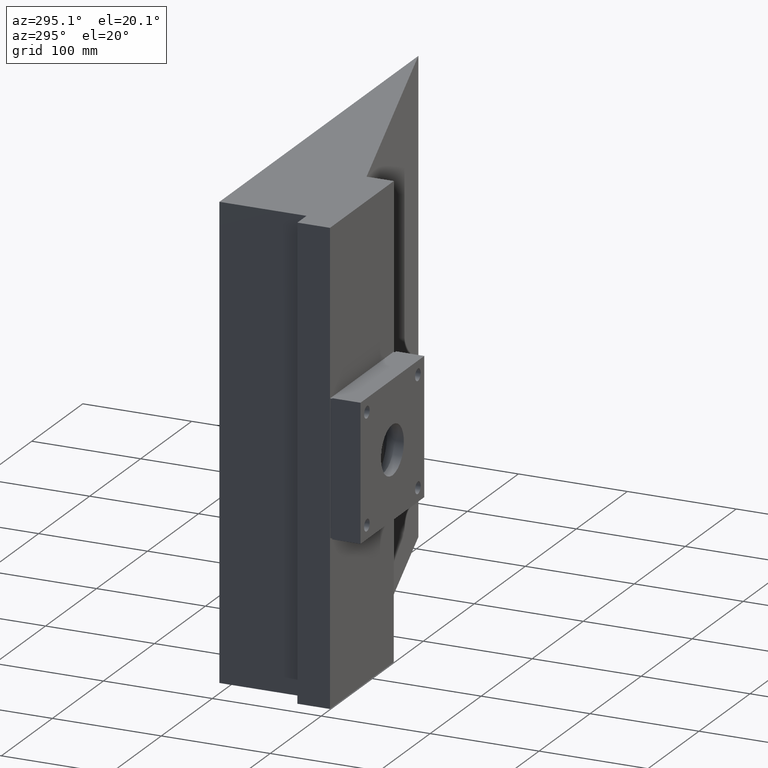
[diagram: clean part render]
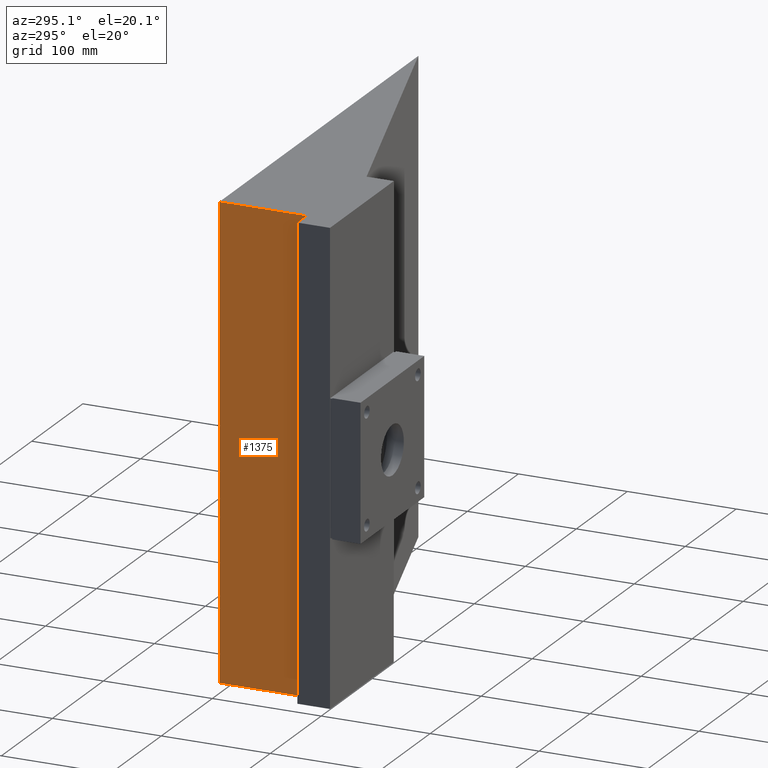
[diagram: same view with one face highlighted and labeled with its STEP entity id]
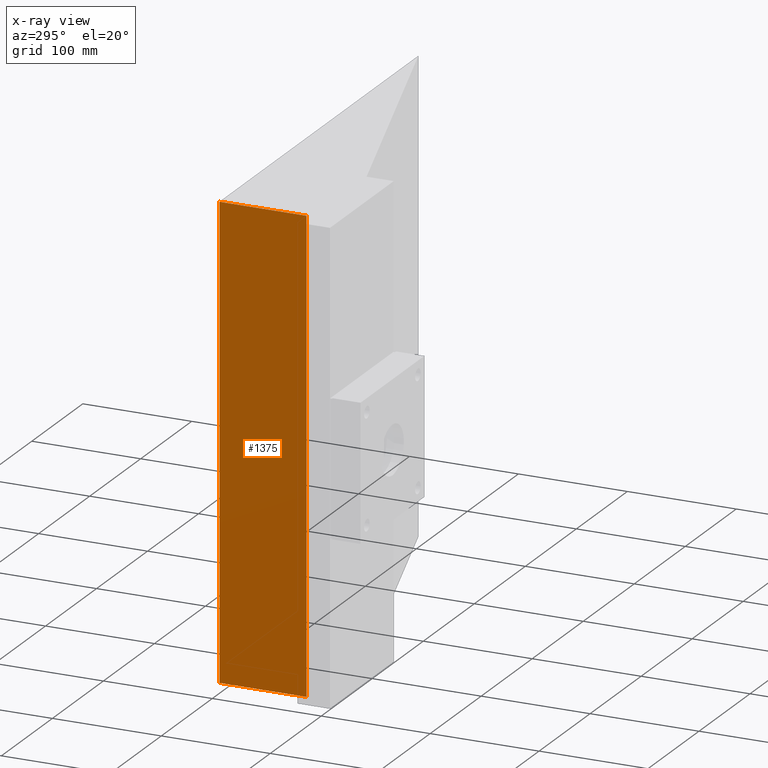
[diagram: x-ray of the same camera — body ghosted, the highlighted face saturated]
A machine part, auxiliary view. The second image highlights one B-rep face of the part: STEP entity #1375.
The next image is the same camera in x-ray: the body ghosted, the highlighted face saturated — about 0% of this face is hidden behind the body in this view.
In plain terms, the highlighted planar face has unit normal (1, 0, 0).
Its self-contained STEP definition (entity closure, byte-faithful):
#23 = ORIENTED_EDGE ( 'NONE', *, *, #379, .T. ) ;
#210 = CARTESIAN_POINT ( 'NONE',  ( -86.11638246079655800, -80.00000000000000000, -213.0000000000000000 ) ) ;
#224 = LINE ( 'NONE', #2254, #2564 ) ;
#252 = VERTEX_POINT ( 'NONE', #2190 ) ;
#255 = DIRECTION ( 'NONE',  ( 1.000000000000000000, 0.0000000000000000000, 0.0000000000000000000 ) ) ;
#379 = EDGE_CURVE ( 'NONE', #2578, #2099, #224, .T. ) ;
#630 = EDGE_LOOP ( 'NONE', ( #23, #1500, #1347, #1647 ) ) ;
#1062 = CARTESIAN_POINT ( 'NONE',  ( -86.11638246079655800, -80.00000000000000000, 213.0000000000000000 ) ) ;
#1347 = ORIENTED_EDGE ( 'NONE', *, *, #1846, .F. ) ;
#1375 = ADVANCED_FACE ( 'NONE', ( #1812 ), #1853, .F. ) ;
#1391 = VECTOR ( 'NONE', #2368, 1000.000000000000000 ) ;
#1400 = CARTESIAN_POINT ( 'NONE',  ( -86.11638246079655800, 0.0000000000000000000, 213.0000000000000000 ) ) ;
#1410 = DIRECTION ( 'NONE',  ( 0.0000000000000000000, 0.0000000000000000000, -1.000000000000000000 ) ) ;
#1432 = AXIS2_PLACEMENT_3D ( 'NONE', #2529, #255, #1410 ) ;
#1500 = ORIENTED_EDGE ( 'NONE', *, *, #2923, .F. ) ;
#1647 = ORIENTED_EDGE ( 'NONE', *, *, #1952, .T. ) ;
#1741 = CARTESIAN_POINT ( 'NONE',  ( -86.11638246079655800, -80.00000000000000000, 213.0000000000000000 ) ) ;
#1812 = FACE_OUTER_BOUND ( 'NONE', #630, .T. ) ;
#1846 = EDGE_CURVE ( 'NONE', #2413, #252, #2264, .T. ) ;
#1853 = PLANE ( 'NONE',  #1432 ) ;
#1866 = CARTESIAN_POINT ( 'NONE',  ( -86.11638246079655800, 0.0000000000000000000, 213.0000000000000000 ) ) ;
#1952 = EDGE_CURVE ( 'NONE', #2413, #2578, #2051, .T. ) ;
#1969 = DIRECTION ( 'NONE',  ( -0.0000000000000000000, -1.000000000000000000, -0.0000000000000000000 ) ) ;
#2051 = LINE ( 'NONE', #1400, #1391 ) ;
#2099 = VERTEX_POINT ( 'NONE', #210 ) ;
#2190 = CARTESIAN_POINT ( 'NONE',  ( -86.11638246079655800, -80.00000000000000000, 213.0000000000000000 ) ) ;
#2254 = CARTESIAN_POINT ( 'NONE',  ( -86.11638246079655800, -80.00000000000000000, -213.0000000000000000 ) ) ;
#2264 = LINE ( 'NONE', #1741, #2857 ) ;
#2319 = LINE ( 'NONE', #1062, #2912 ) ;
#2368 = DIRECTION ( 'NONE',  ( -0.0000000000000000000, -0.0000000000000000000, -1.000000000000000000 ) ) ;
#2413 = VERTEX_POINT ( 'NONE', #1866 ) ;
#2513 = CARTESIAN_POINT ( 'NONE',  ( -86.11638246079655800, 0.0000000000000000000, -213.0000000000000000 ) ) ;
#2529 = CARTESIAN_POINT ( 'NONE',  ( -86.11638246079655800, -80.00000000000000000, 213.0000000000000000 ) ) ;
#2564 = VECTOR ( 'NONE', #2850, 1000.000000000000000 ) ;
#2578 = VERTEX_POINT ( 'NONE', #2513 ) ;
#2635 = DIRECTION ( 'NONE',  ( -0.0000000000000000000, -0.0000000000000000000, -1.000000000000000000 ) ) ;
#2850 = DIRECTION ( 'NONE',  ( -0.0000000000000000000, -1.000000000000000000, -0.0000000000000000000 ) ) ;
#2857 = VECTOR ( 'NONE', #1969, 1000.000000000000000 ) ;
#2912 = VECTOR ( 'NONE', #2635, 1000.000000000000000 ) ;
#2923 = EDGE_CURVE ( 'NONE', #252, #2099, #2319, .T. ) ;